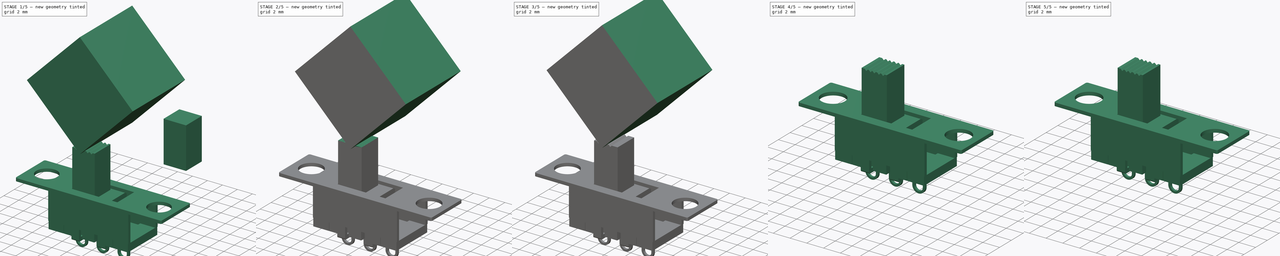
[diagram: build sequence overview — one tinted view per stage of 5, left to right]
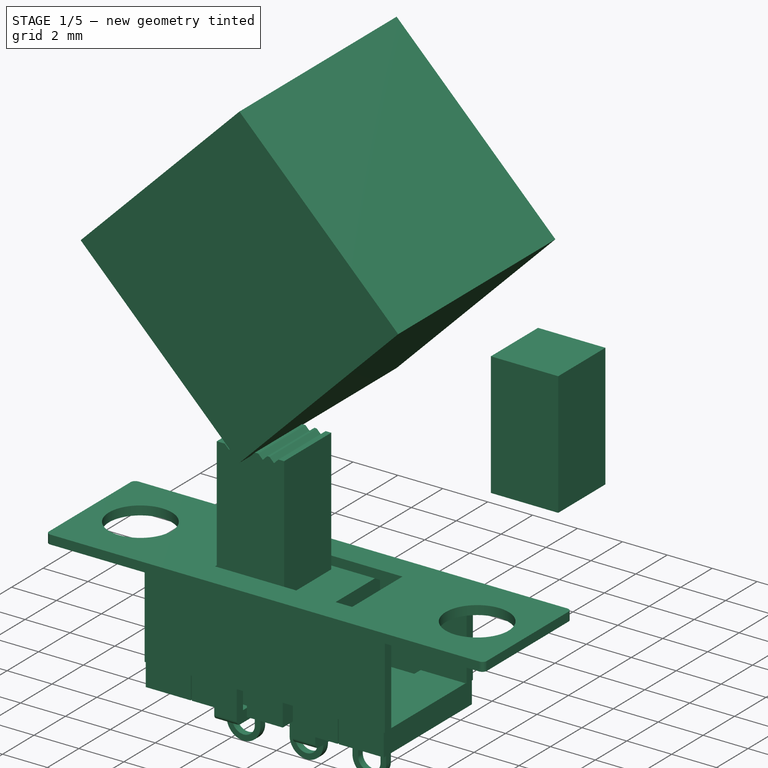
[diagram: stage 1 of 5 — iso view after this stage's code; geometry added in this stage tinted green]
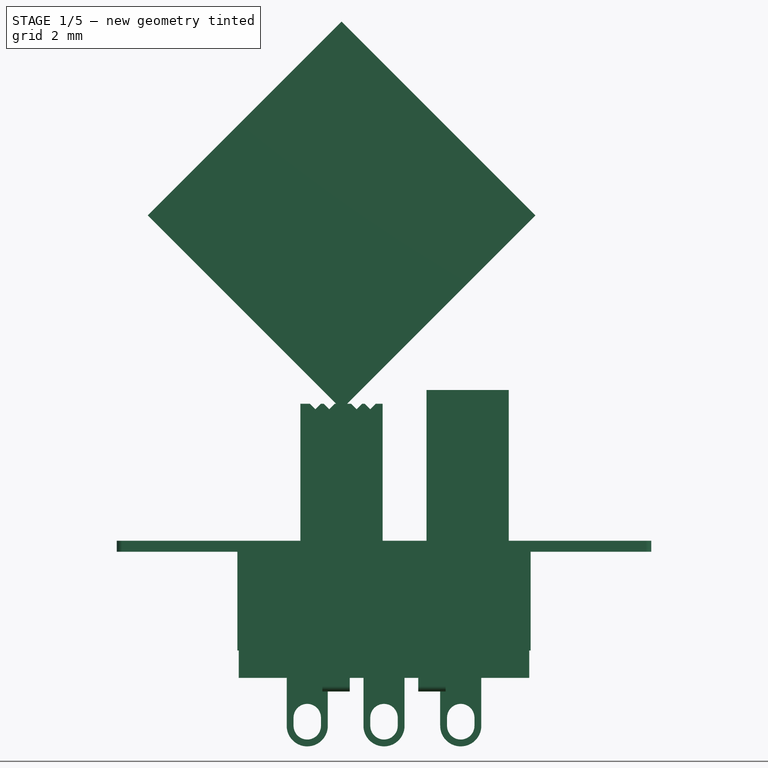
[diagram: stage 1 of 5 — front view after this stage's code; geometry added in this stage tinted green]
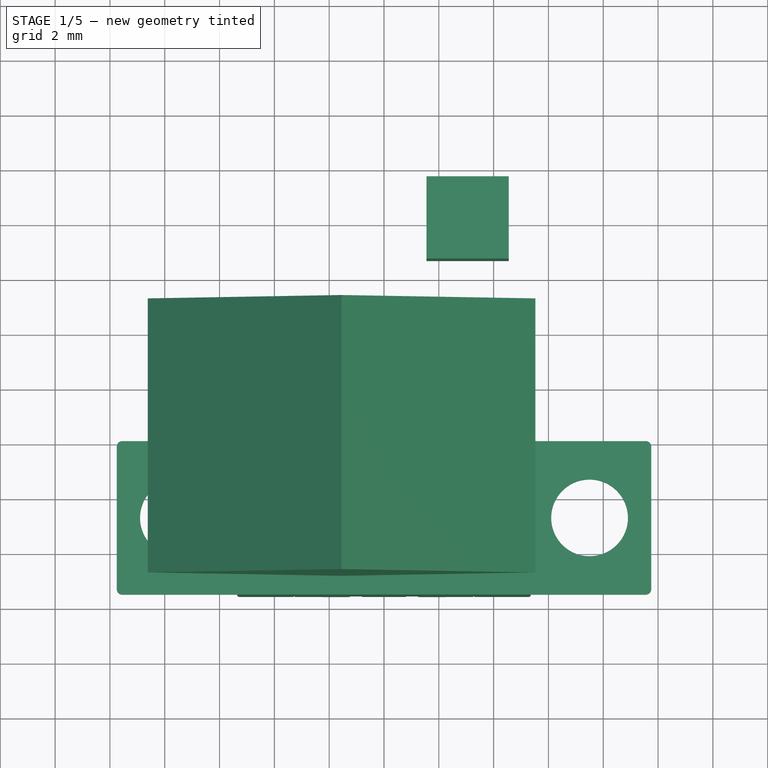
[diagram: stage 1 of 5 — top view after this stage's code; geometry added in this stage tinted green]
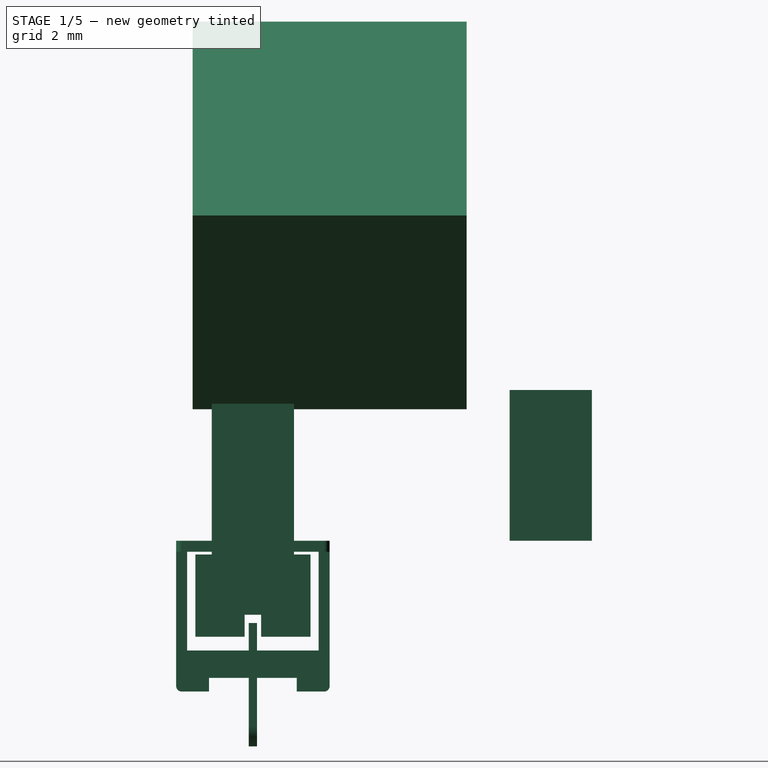
[diagram: stage 1 of 5 — right view after this stage's code; geometry added in this stage tinted green]
FCSTD DOCUMENT  (FreeCAD 0.16R6712 (Git))
Label: Sliding_switch
License: CreativeCommons Attribution-ShareAlike
LicenseURL: http://creativecommons.org/licenses/by-sa/4.0/
objects: Part::FeaturePython×7, Sketcher::SketchObject×6, Part::Cut×6, Part::Feature×6, PartDesign::Pocket×4, Part::MultiCommon×4, Part::Box×4, PartDesign::Pad×2, Part::Fillet×1, Part::MultiFuse×1, Part::Compound×1
note: 48 computed .brp shape members not serialized (recipe doc carries the construction recipe); baked Part::Feature solids carry a one-line shape summary decoded from their .brp

FEATURE [Part::Box] Box002  label="Cube002"
  Height = 5.5
  Length = 3
  Placement = pos=(1.55,6.56664,0) rot=(0,0,1;0rad)
  Width = 3
FEATURE [Part::Box] Box003  label="Cube003"
  Height = 10
  Length = 10
  Placement = pos=(-1.55,-5,4.8) rot=(0,-1,0;0.785398rad)
  Width = 10
FEATURE [Sketcher::SketchObject] Sketch005
  Placement = pos=(0,-2.65,0) rot=(-1,0,0;4.71239rad)
  sketch-geometry (9):
    g0: LineSegment StartX=-0.75 StartY=-3 StartZ=0 EndX=0.75 EndY=-3 EndZ=0
    g1: LineSegment StartX=0.75 StartY=-3 StartZ=0 EndX=0.75 EndY=-6.75 EndZ=0
    g2: LineSegment StartX=-0.75 StartY=-6.75 StartZ=0 EndX=-0.75 EndY=-3 EndZ=0
    g3: ArcOfCircle CenterX=0 CenterY=-6.75 CenterZ=0 NormalX=0 NormalY=0 NormalZ=1 Radius=0.75 StartAngle=4.71239 EndAngle=6.28319
    g4: ArcOfCircle CenterX=0 CenterY=-6.75 CenterZ=0 NormalX=0 NormalY=0 NormalZ=1 Radius=0.75 StartAngle=3.14159 EndAngle=4.71239
    g5: ArcOfCircle CenterX=0 CenterY=-6.75 CenterZ=0 NormalX=0 NormalY=0 NormalZ=1 Radius=0.5 StartAngle=3.14159 EndAngle=6.28319
    g6: ArcOfCircle CenterX=0 CenterY=-6.45 CenterZ=0 NormalX=0 NormalY=0 NormalZ=1 Radius=0.5 StartAngle=0 EndAngle=3.14159
    g7: LineSegment StartX=0.5 StartY=-6.75 StartZ=0 EndX=0.5 EndY=-6.45 EndZ=0
    g8: LineSegment StartX=-0.5 StartY=-6.75 StartZ=0 EndX=-0.5 EndY=-6.45 EndZ=0
  constraints (24):
    c: Coincident(g0,g1)
    c: Coincident(g2,g0)
    c: Horizontal(g0)
    c: Vertical(g1)
    c: Vertical(g2)
    c: Symmetric(g0,g0,g-2)
    c: DistanceX(g0,g0) = 1.5
    c: Tangent(g1,g3) = 1.5708
    c: Tangent(g2,g4) = 1.5708
    c: PointOnObject(g4,g-2)
    c: Coincident(g4,g3)
    c: Equal(g4,g3)
    c: PointOnObject(g3,g-2)
    c: DistanceY(g3,g0) = 4.5
    c: DistanceY(g0,g-1) = 3
    c: Tangent(g5,g8) = 1.5708
    c: Tangent(g5,g7) = -1.5708
    c: Tangent(g7,g6) = -1.5708
    c: Tangent(g8,g6) = 1.5708
    c: Vertical(g7)
    c: Equal(g5,g6)
    c: Coincident(g5,g3)
    c: DistanceY(g5,g6) = 0.3
    c: DistanceX(g6,g6) = 1
FEATURE [PartDesign::Pad] Pad001  label="PIN_2"
  Length = 0.3
  Length2 = 100
  Placement = pos=(0,-2.65,0) rot=(-1,0,0;4.71239rad)
  Sketch = -> Sketch005
  Type = 0
FEATURE [Part::FeaturePython] Clone005  label="PIN_1"  # Draft clone (typed FeaturePython)
  Objects = -> [Pad001]
  Placement = pos=(2.8,-2.65,0) rot=(-1,0,0;4.71239rad)
  Scale = (1,1,1)
FEATURE [Part::FeaturePython] Clone006  label="PIN_3"  # Draft clone (typed FeaturePython)
  Objects = -> [Pad001]
  Placement = pos=(-2.8,-2.65,0) rot=(-1,0,0;4.71239rad)
  Scale = (1,1,1)
FEATURE [Part::Feature] Fillet001  label="Plegado001"
  shape: bbox 19.5 x 5.6 x 5.5 mm, 60 faces (baked)
FEATURE [Part::Feature] Common002001  label="Baquelita001"
  Placement = pos=(-5.3,-5.6,-5) rot=(0,0,1;0rad)
  shape: bbox 10.6 x 5.6 x 1 mm, 34 faces (baked)
FEATURE [Part::Feature] Cut005001  label="Mando001"
  shape: bbox 6.5 x 4.2 x 8.5 mm, 30 faces (baked)
FEATURE [Part::Feature] Clone005001  label="PIN_004"
  Placement = pos=(2.8,-2.65,0) rot=(1,0,0;1.5708rad)
  shape: bbox 1.5 x 0.3 x 4.5 mm, 10 faces (baked)
FEATURE [Part::Feature] Pad001001  label="PIN_005"
  Placement = pos=(0,-2.65,0) rot=(1,0,0;1.5708rad)
  shape: bbox 1.5 x 0.3 x 4.5 mm, 10 faces (baked)
FEATURE [Part::Feature] Clone006001  label="PIN_006"
  Placement = pos=(-2.8,-2.65,0) rot=(1,0,0;1.5708rad)
  shape: bbox 1.5 x 0.3 x 4.5 mm, 10 faces (baked)
FEATURE [Part::Compound] Compound
  Links = -> [Fillet001,Common002001,Cut005001,Clone005001,Pad001001,Clone006001]
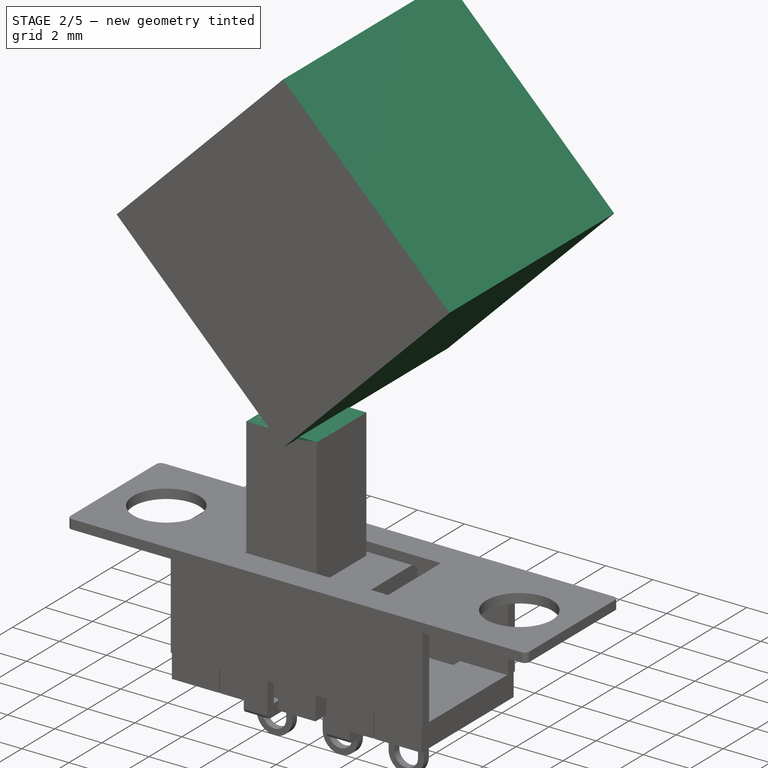
[diagram: stage 2 of 5 — iso view after this stage's code; geometry added in this stage tinted green]
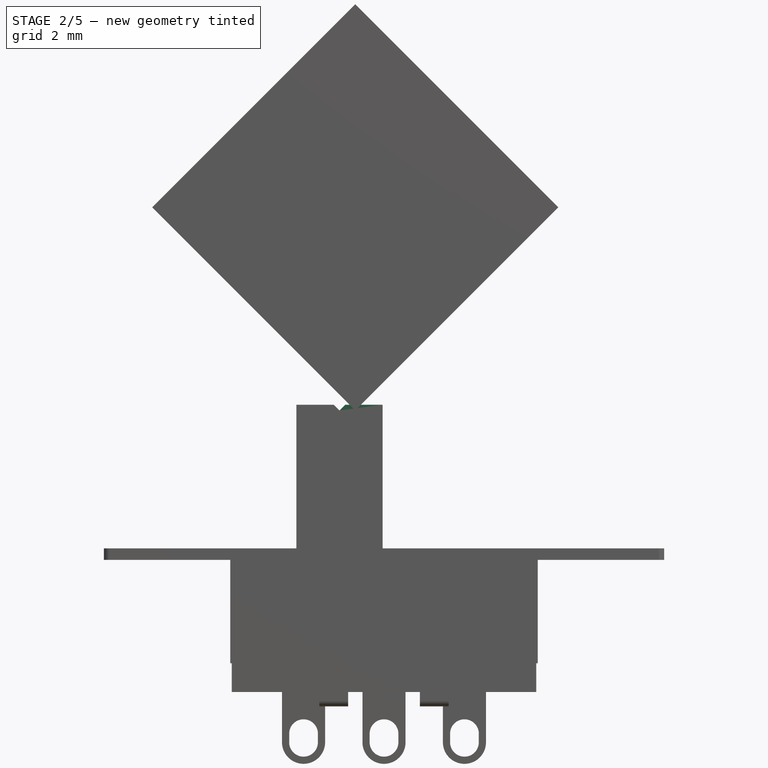
[diagram: stage 2 of 5 — front view after this stage's code; geometry added in this stage tinted green]
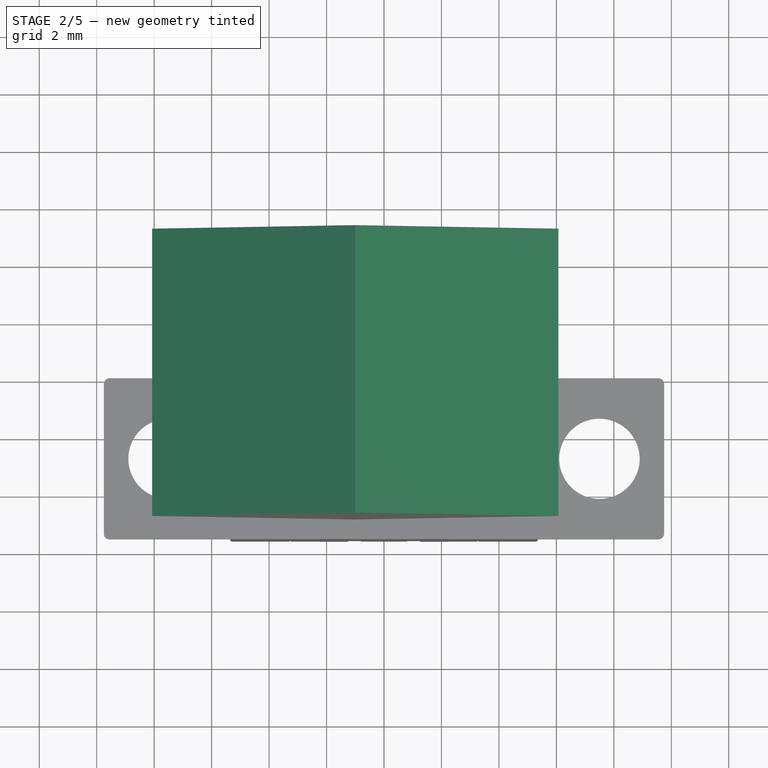
[diagram: stage 2 of 5 — top view after this stage's code; geometry added in this stage tinted green]
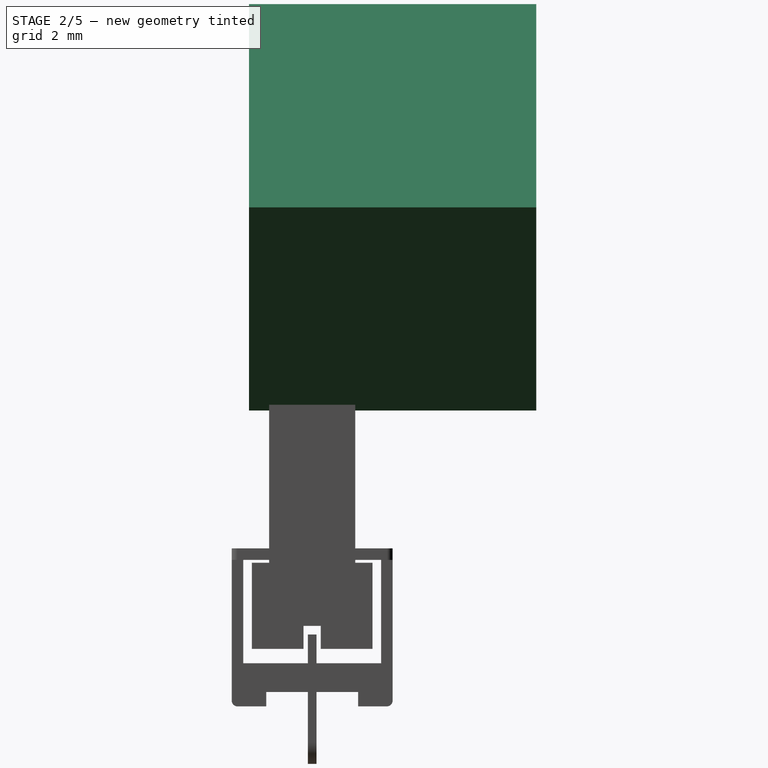
[diagram: stage 2 of 5 — right view after this stage's code; geometry added in this stage tinted green]
FEATURE [Part::Box] Box001  label="Cube001"
  Height = 3
  Length = 6.5
  Placement = pos=(-0.2,5.96664,-3) rot=(0,0,1;0rad)
  Width = 4.2
FEATURE [Part::MultiFuse] Fusion
  Placement = pos=(-4.6,-10.8666,-0.5) rot=(0,0,1;0rad)
  Shapes = -> [Box001,Box002]
FEATURE [Sketcher::SketchObject] Sketch004
  ExternalGeometry = -> [Fusion]
  Placement = pos=(-4.8,-10.8666,-0.5) rot=(0.57735,-0.57735,-0.57735;2.0944rad)
  Support = -> Fusion [Face1]
  sketch-geometry (4):
    g0: LineSegment StartX=-8.36664 StartY=-3 StartZ=0 EndX=-7.76664 EndY=-3 EndZ=0
    g1: LineSegment StartX=-7.76664 StartY=-3 StartZ=0 EndX=-7.76664 EndY=-2.2 EndZ=0
    g2: LineSegment StartX=-7.76664 StartY=-2.2 StartZ=0 EndX=-8.36664 EndY=-2.2 EndZ=0
    g3: LineSegment StartX=-8.36664 StartY=-2.2 StartZ=0 EndX=-8.36664 EndY=-3 EndZ=0
  constraints (12):
    c: Coincident(g0,g1)
    c: Coincident(g1,g2)
    c: Coincident(g2,g3)
    c: Coincident(g3,g0)
    c: Horizontal(g0)
    c: Horizontal(g2)
    c: Vertical(g1)
    c: Vertical(g3)
    c: PointOnObject(g0,g-3)
    c: DistanceY(g1,g1) = 0.8
    c: DistanceX(g2,g2) = 0.6
    c: DistanceX(g-3,g2) = 1.8
FEATURE [PartDesign::Pocket] Pocket003
  Length = 5
  Placement = pos=(-4.6,-10.8666,-0.5) rot=(0,0,1;0rad)
  Sketch = -> Sketch004
  Type = 1
FEATURE [Part::MultiCommon] Common003
  Shapes = -> [Fusion,Pocket003]
FEATURE [Part::FeaturePython] Clone  label="Clone of Cube003"  # Draft clone (typed FeaturePython)
  Objects = -> [Box003]
  Placement = pos=(-1,-5,4.8) rot=(0,-1,0;0.785398rad)
  Scale = (1,1,1)
FEATURE [Part::Cut] Cut
  Base = -> Common003
  Tool = -> Box003
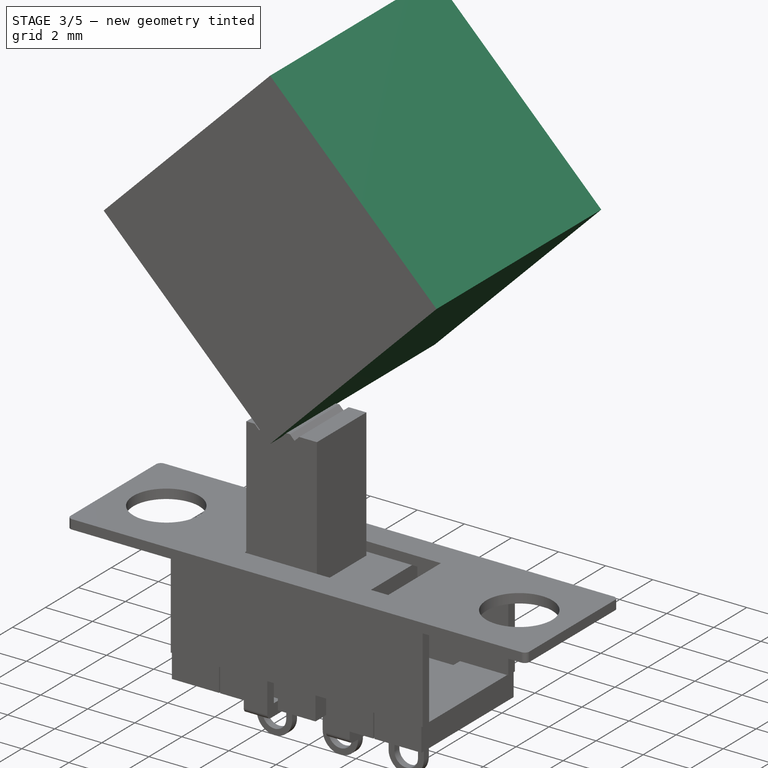
[diagram: stage 3 of 5 — iso view after this stage's code; geometry added in this stage tinted green]
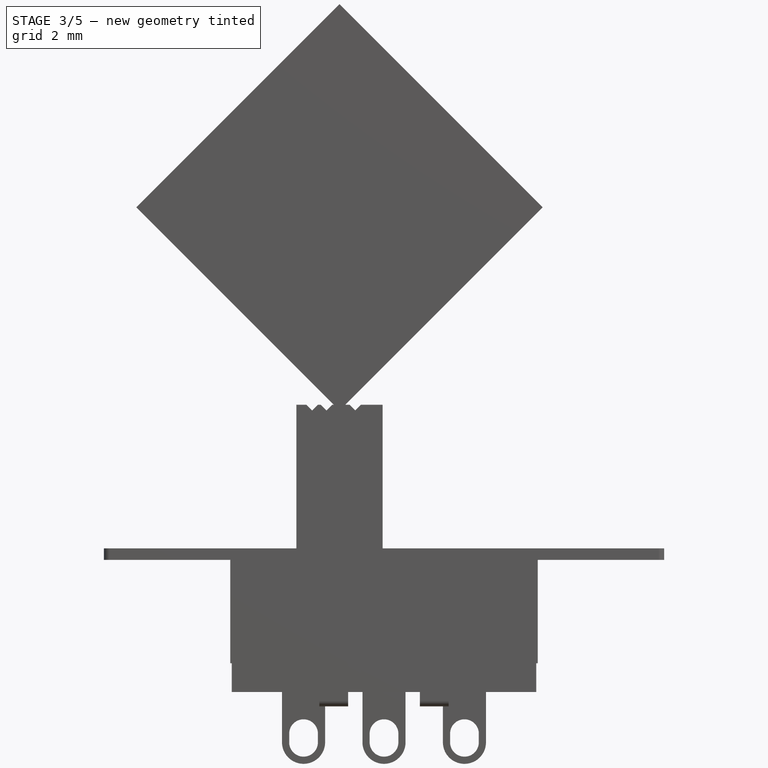
[diagram: stage 3 of 5 — front view after this stage's code; geometry added in this stage tinted green]
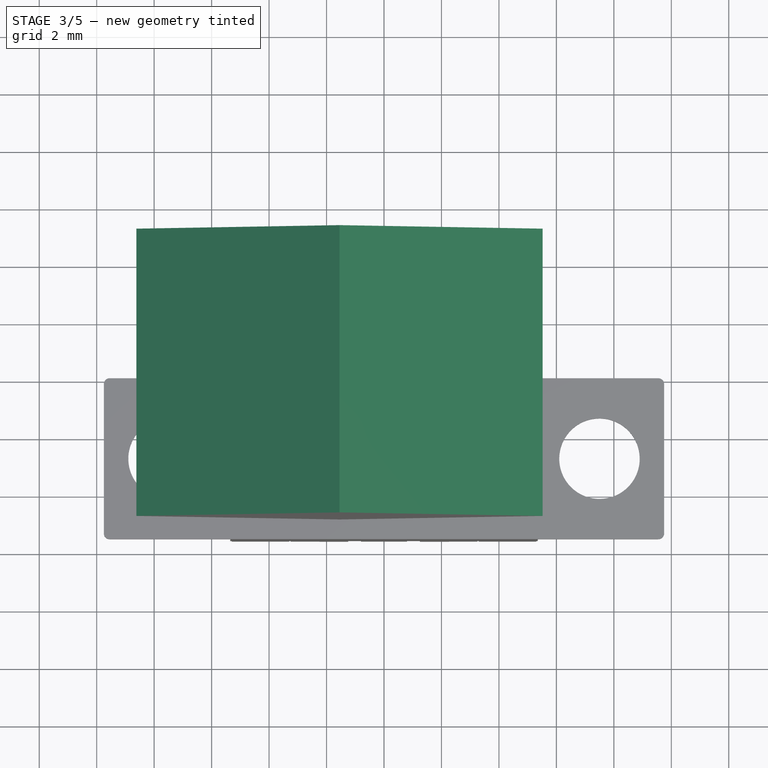
[diagram: stage 3 of 5 — top view after this stage's code; geometry added in this stage tinted green]
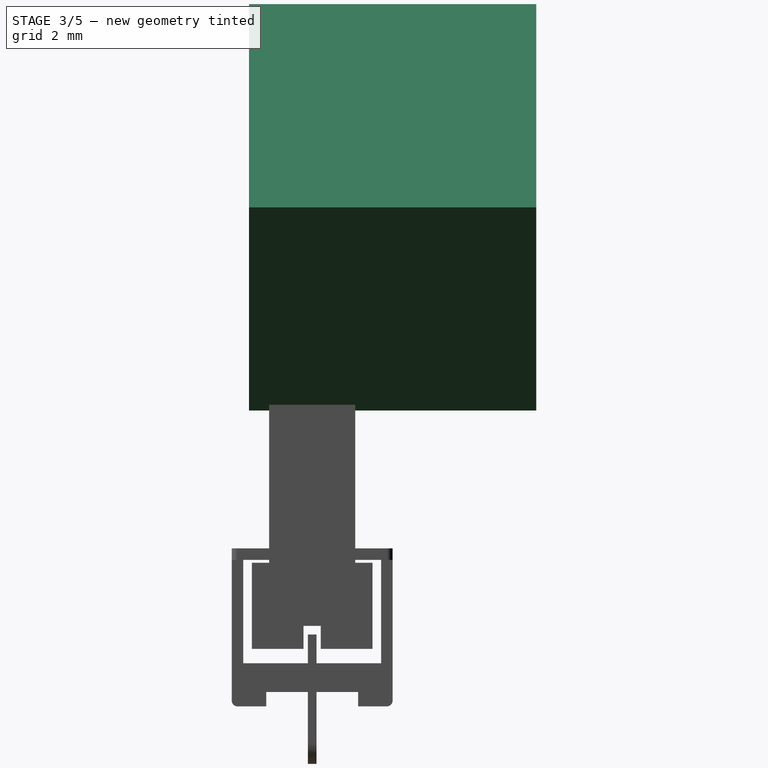
[diagram: stage 3 of 5 — right view after this stage's code; geometry added in this stage tinted green]
FEATURE [Part::FeaturePython] Clone001  label="Clone of Cube004"  # Draft clone (typed FeaturePython)
  Objects = -> [Box003]
  Placement = pos=(-2,-5,4.8) rot=(0,-1,0;0.785398rad)
  Scale = (1,1,1)
FEATURE [Part::FeaturePython] Clone002  label="Clone of Cube005"  # Draft clone (typed FeaturePython)
  Objects = -> [Box003]
  Placement = pos=(-2.5,-5,4.8) rot=(0,-1,0;0.785398rad)
  Scale = (1,1,1)
FEATURE [Part::FeaturePython] Clone003  label="Clone of Cube006"  # Draft clone (typed FeaturePython)
  Objects = -> [Box003]
  Placement = pos=(-1.55,-5,4.8) rot=(0,-1,0;0.785398rad)
  Scale = (1,1,1)
FEATURE [Part::Cut] Cut001
  Base = -> Cut
  Tool = -> Clone
FEATURE [Part::Cut] Cut002
  Base = -> Cut001
  Tool = -> Clone001
FEATURE [Part::Cut] Cut003
  Base = -> Cut002
  Tool = -> Clone002
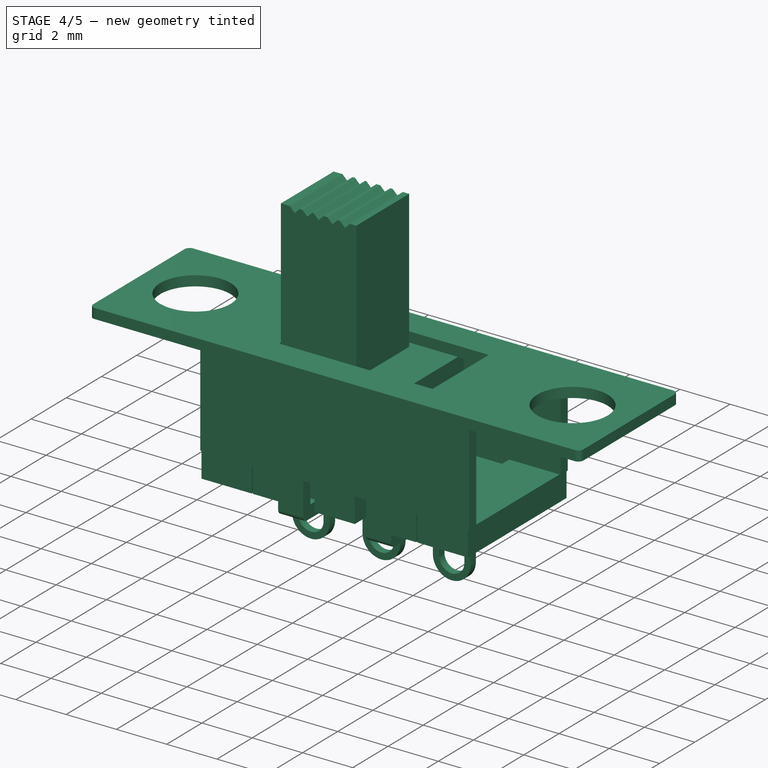
[diagram: stage 4 of 5 — iso view after this stage's code; geometry added in this stage tinted green]
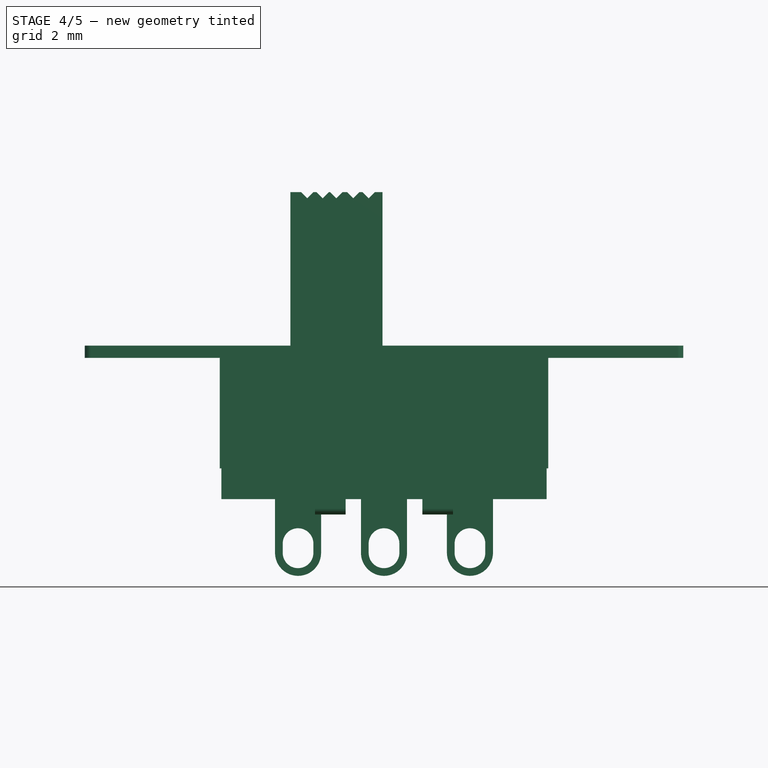
[diagram: stage 4 of 5 — front view after this stage's code; geometry added in this stage tinted green]
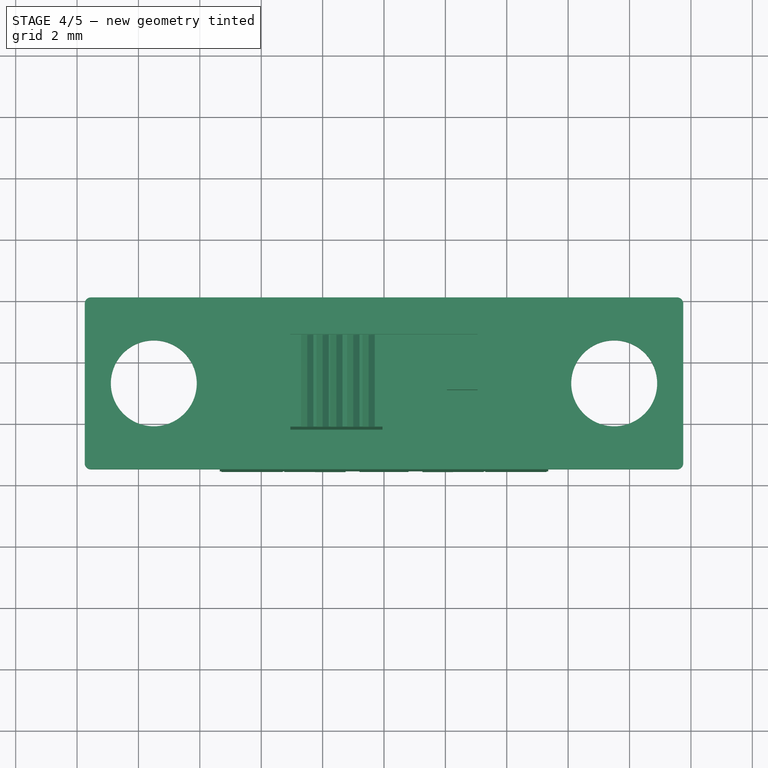
[diagram: stage 4 of 5 — top view after this stage's code; geometry added in this stage tinted green]
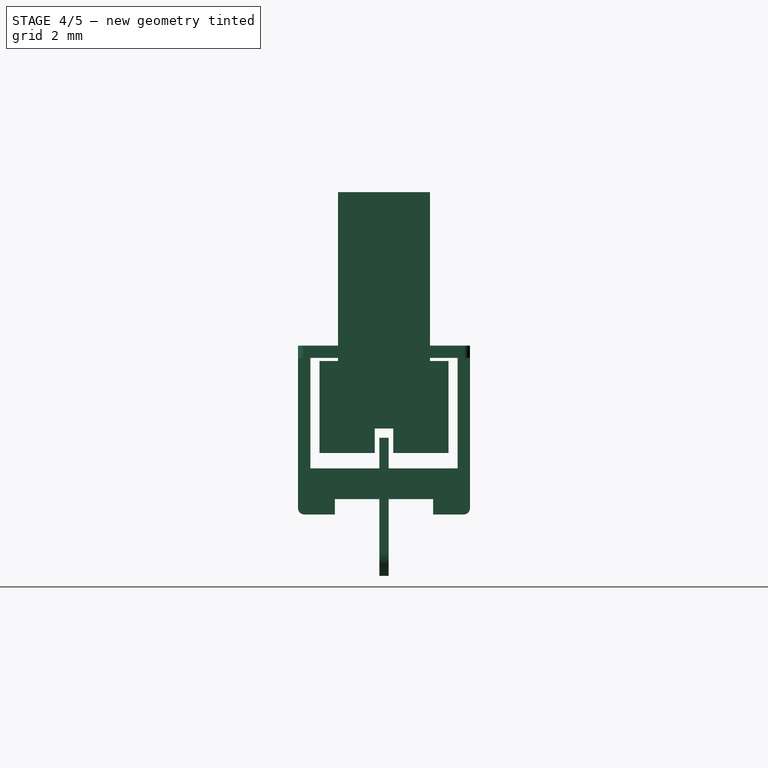
[diagram: stage 4 of 5 — right view after this stage's code; geometry added in this stage tinted green]
FEATURE [Part::Box] Box  label="Cube"
  Height = 1
  Length = 10.6
  Width = 5.6
FEATURE [Sketcher::SketchObject] Sketch003
  ExternalGeometry = -> [Box]
  Placement = pos=(0,0,1) rot=(0,0,1;0rad)
  Support = -> Box [Face6]
  sketch-geometry (28):
    g0: LineSegment StartX=2 StartY=5.6 StartZ=0 EndX=4.5 EndY=5.6 EndZ=0
    g1: LineSegment StartX=4.5 StartY=5.6 StartZ=0 EndX=4.5 EndY=4.8 EndZ=0
    g2: LineSegment StartX=4.5 StartY=4.8 StartZ=0 EndX=2 EndY=4.8 EndZ=0
    g3: LineSegment StartX=2 StartY=4.8 StartZ=0 EndX=2 EndY=5.6 EndZ=0
    g4: LineSegment StartX=6.1 StartY=5.6 StartZ=0 EndX=8.6 EndY=5.6 EndZ=0
    g5: LineSegment StartX=8.6 StartY=5.6 StartZ=0 EndX=8.6 EndY=4.8 EndZ=0
    g6: LineSegment StartX=8.6 StartY=4.8 StartZ=0 EndX=6.1 EndY=4.8 EndZ=0
    g7: LineSegment StartX=6.1 StartY=4.8 StartZ=0 EndX=6.1 EndY=5.6 EndZ=0
    g8: LineSegment StartX=2 StartY=0 StartZ=0 EndX=4.5 EndY=0 EndZ=0
    g9: LineSegment StartX=4.5 StartY=0 StartZ=0 EndX=4.5 EndY=0.8 EndZ=0
    g10: LineSegment StartX=4.5 StartY=0.8 StartZ=0 EndX=2 EndY=0.8 EndZ=0
    g11: LineSegment StartX=2 StartY=0.8 StartZ=0 EndX=2 EndY=0 EndZ=0
    g12: LineSegment StartX=6.1 StartY=0 StartZ=0 EndX=8.6 EndY=0 EndZ=0
    g13: LineSegment StartX=8.6 StartY=0 StartZ=0 EndX=8.6 EndY=0.8 EndZ=0
    g14: LineSegment StartX=8.6 StartY=0.8 StartZ=0 EndX=6.1 EndY=0.8 EndZ=0
    g15: LineSegment StartX=6.1 StartY=0.8 StartZ=0 EndX=6.1 EndY=0 EndZ=0
    g16: LineSegment StartX=1.75 StartY=2.95 StartZ=0 EndX=3.25 EndY=2.95 EndZ=0
    g17: LineSegment StartX=3.25 StartY=2.95 StartZ=0 EndX=3.25 EndY=2.65 EndZ=0
    g18: LineSegment StartX=3.25 StartY=2.65 StartZ=0 EndX=1.75 EndY=2.65 EndZ=0
    g19: LineSegment StartX=1.75 StartY=2.65 StartZ=0 EndX=1.75 EndY=2.95 EndZ=0
    g20: LineSegment StartX=4.55 StartY=2.95 StartZ=0 EndX=6.05 EndY=2.95 EndZ=0
    g21: LineSegment StartX=6.05 StartY=2.95 StartZ=0 EndX=6.05 EndY=2.65 EndZ=0
    g22: LineSegment StartX=6.05 StartY=2.65 StartZ=0 EndX=4.55 EndY=2.65 EndZ=0
    g23: LineSegment StartX=4.55 StartY=2.65 StartZ=0 EndX=4.55 EndY=2.95 EndZ=0
    g24: LineSegment StartX=7.35 StartY=2.95 StartZ=0 EndX=8.85 EndY=2.95 EndZ=0
    g25: LineSegment StartX=8.85 StartY=2.95 StartZ=0 EndX=8.85 EndY=2.65 EndZ=0
    g26: LineSegment StartX=8.85 StartY=2.65 StartZ=0 EndX=7.35 EndY=2.65 EndZ=0
    g27: LineSegment StartX=7.35 StartY=2.65 StartZ=0 EndX=7.35 EndY=2.95 EndZ=0
  constraints (84):
    c: Coincident(g0,g1)
    c: Coincident(g1,g2)
    c: Coincident(g2,g3)
    c: Coincident(g3,g0)
    c: Horizontal(g0)
    c: Horizontal(g2)
    c: Vertical(g1)
    c: Vertical(g3)
    c: PointOnObject(g0,g-3)
    c: Coincident(g4,g5)
    c: Coincident(g5,g6)
    c: Coincident(g6,g7)
    c: Coincident(g7,g4)
    c: Horizontal(g4)
    c: Horizontal(g6)
    c: Vertical(g5)
    c: Vertical(g7)
    c: PointOnObject(g4,g-3)
    c: Coincident(g8,g9)
    c: Coincident(g9,g10)
    c: Coincident(g10,g11)
    c: Coincident(g11,g8)
    c: Horizontal(g8)
    c: Horizontal(g10)
    c: Vertical(g9)
    c: Vertical(g11)
    c: PointOnObject(g8,g-1)
    c: Coincident(g12,g13)
    c: Coincident(g13,g14)
    c: Coincident(g14,g15)
    c: Coincident(g15,g12)
    c: Horizontal(g12)
    c: Horizontal(g14)
    c: Vertical(g13)
    c: Vertical(g15)
    c: PointOnObject(g12,g-1)
    c: Equal(g3,g7)
    c: Equal(g7,g15)
    c: Equal(g15,g11)
    c: Equal(g2,g6)
    c: Equal(g6,g14)
    c: Equal(g14,g10)
    c: DistanceX(g2,g2) = 2.5
    c: DistanceY(g5,g5) = 0.8
    c: DistanceX(g-3,g0) = 2
    c: DistanceX(g-1,g8) = 2
    c: DistanceX(g4,g-3) = 2
    c: DistanceX(g13,g-3) = 2
    c: Coincident(g16,g17)
    c: Coincident(g17,g18)
    c: Coincident(g18,g19)
    c: Coincident(g19,g16)
    c: Horizontal(g16)
    c: Horizontal(g18)
    c: Vertical(g17)
    c: Vertical(g19)
    c: Coincident(g20,g21)
    c: Coincident(g21,g22)
    c: Coincident(g22,g23)
    c: Coincident(g23,g20)
    c: Horizontal(g20)
    c: Horizontal(g22)
    c: Vertical(g21)
    c: Vertical(g23)
    c: Coincident(g24,g25)
    c: Coincident(g25,g26)
    c: Coincident(g26,g27)
    c: Coincident(g27,g24)
    c: Horizontal(g24)
    c: Horizontal(g26)
    c: Vertical(g25)
    c: Vertical(g27)
    c: Equal(g16,g20)
    c: Equal(g20,g24)
    c: Equal(g17,g21)
    c: Equal(g21,g25)
    c: DistanceY(g25,g25) = 0.3
    c: DistanceX(g24,g24) = 1.5
    c: DistanceY(g-1,g25) = 2.65
    c: DistanceY(g-1,g21) = 2.65
    c: DistanceY(g-1,g17) = 2.65
    c: DistanceX(g16,g20) = 1.3
    c: DistanceX(g20,g24) = 1.3
    c: DistanceX(g-3,g16) = 1.75
FEATURE [PartDesign::Pocket] Pocket002
  Length = 5
  Sketch = -> Sketch003
  Type = 0
FEATURE [Part::MultiCommon] Common002  label="Baquelita"
  Placement = pos=(-5.3,-5.6,-5) rot=(0,0,1;0rad)
  Shapes = -> [Box,Pocket002]
FEATURE [Part::FeaturePython] Clone004  label="Clone of Cube007"  # Draft clone (typed FeaturePython)
  Objects = -> [Box003]
  Placement = pos=(-0.5,-6,4.8) rot=(0,-1,0;0.785398rad)
  Scale = (1,1,1)
FEATURE [Part::Cut] Cut004
  Base = -> Cut003
  Tool = -> Clone003
FEATURE [Part::Cut] Cut005  label="Mando"
  Base = -> Cut004
  Tool = -> Clone004
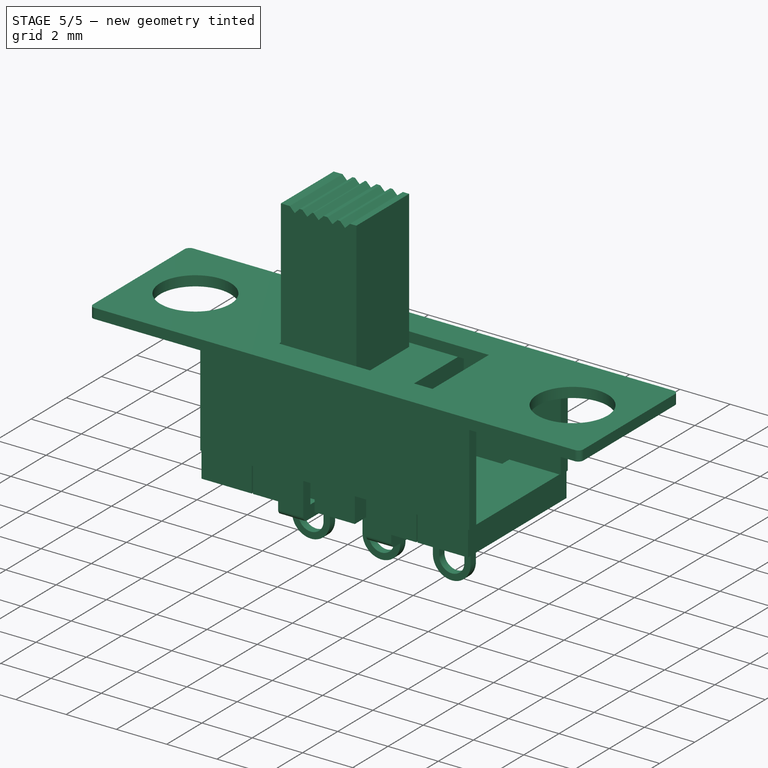
[diagram: stage 5 of 5 — iso view after this stage's code; geometry added in this stage tinted green]
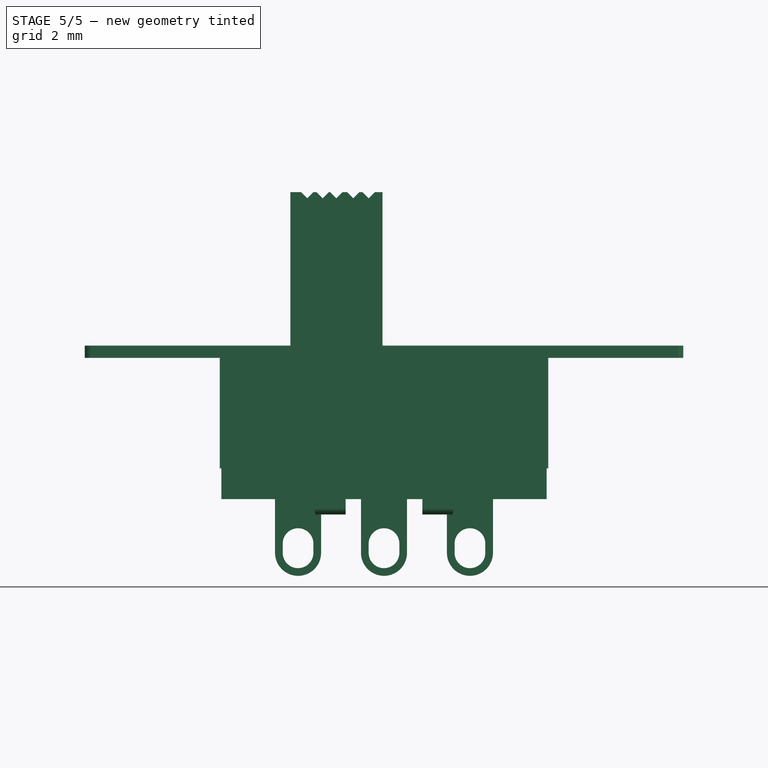
[diagram: stage 5 of 5 — front view after this stage's code; geometry added in this stage tinted green]
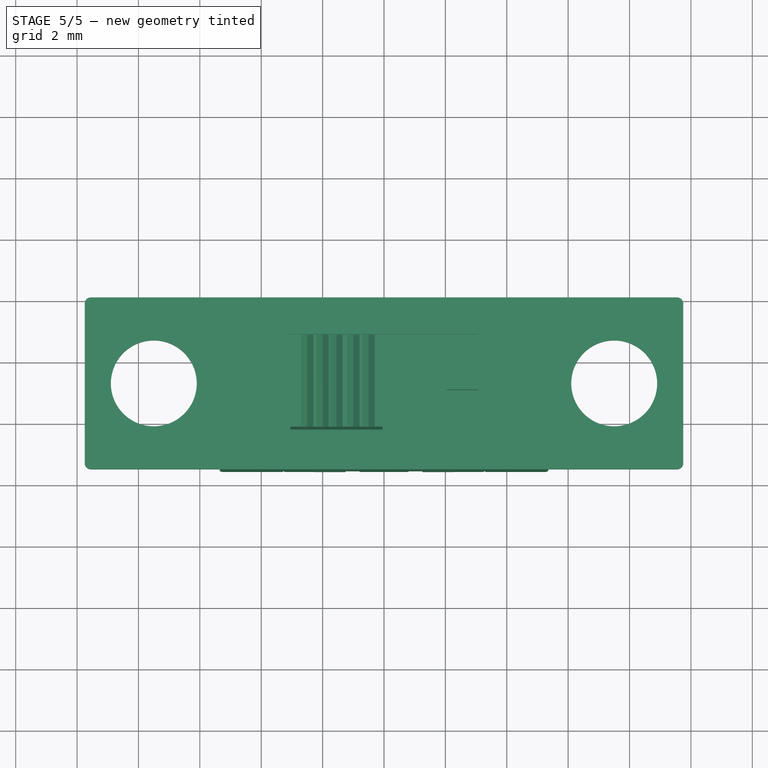
[diagram: stage 5 of 5 — top view after this stage's code; geometry added in this stage tinted green]
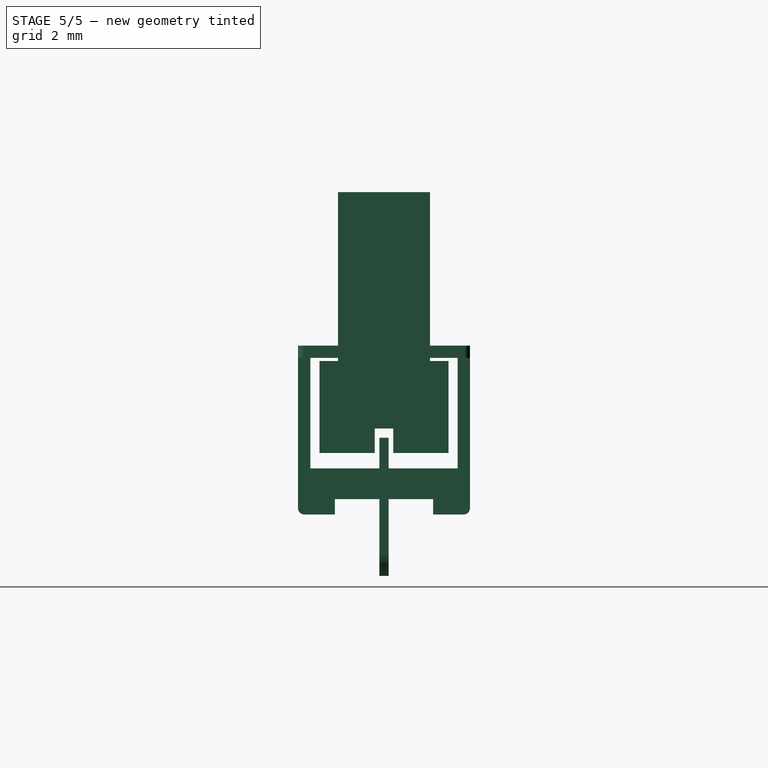
[diagram: stage 5 of 5 — right view after this stage's code; geometry added in this stage tinted green]
FEATURE [Sketcher::SketchObject] Sketch
  Placement = pos=(0,0,0) rot=(1,0,0;1.5708rad)
  sketch-geometry (20):
    g0: LineSegment StartX=-9.75 StartY=0 StartZ=0 EndX=9.75 EndY=0 EndZ=0
    g1: LineSegment StartX=9.75 StartY=0 StartZ=0 EndX=9.75 EndY=-0.4 EndZ=0
    g2: LineSegment StartX=9.75 StartY=-0.4 StartZ=0 EndX=5.35 EndY=-0.4 EndZ=0
    g3: LineSegment StartX=5.35 StartY=-0.4 StartZ=0 EndX=5.35 EndY=-4 EndZ=0
    g4: LineSegment StartX=5.35 StartY=-4 StartZ=0 EndX=3.25 EndY=-4 EndZ=0
    g5: LineSegment StartX=3.25 StartY=-4 StartZ=0 EndX=3.25 EndY=-5 EndZ=0
    g6: LineSegment StartX=3.25 StartY=-5 StartZ=0 EndX=2.25 EndY=-5 EndZ=0
    g7: LineSegment StartX=2.25 StartY=-5 StartZ=0 EndX=2.25 EndY=-5.5 EndZ=0
    g8: LineSegment StartX=2.25 StartY=-5.5 StartZ=0 EndX=1.25 EndY=-5.5 EndZ=0
    g9: LineSegment StartX=1.25 StartY=-5.5 StartZ=0 EndX=1.25 EndY=-4 EndZ=0
    g10: LineSegment StartX=1.25 StartY=-4 StartZ=0 EndX=-1.25 EndY=-4 EndZ=0
    g11: LineSegment StartX=-1.25 StartY=-4 StartZ=0 EndX=-1.25 EndY=-5.5 EndZ=0
    g12: LineSegment StartX=-1.25 StartY=-5.5 StartZ=0 EndX=-2.25 EndY=-5.5 EndZ=0
    g13: LineSegment StartX=-2.25 StartY=-5.5 StartZ=0 EndX=-2.25 EndY=-5 EndZ=0
    g14: LineSegment StartX=-2.25 StartY=-5 StartZ=0 EndX=-3.25 EndY=-5 EndZ=0
    g15: LineSegment StartX=-3.25 StartY=-5 StartZ=0 EndX=-3.25 EndY=-4 EndZ=0
    g16: LineSegment StartX=-3.25 StartY=-4 StartZ=0 EndX=-5.35 EndY=-4 EndZ=0
    g17: LineSegment StartX=-5.35 StartY=-4 StartZ=0 EndX=-5.35 EndY=-0.4 EndZ=0
    g18: LineSegment StartX=-5.35 StartY=-0.4 StartZ=0 EndX=-9.75 EndY=-0.4 EndZ=0
    g19: LineSegment StartX=-9.75 StartY=-0.4 StartZ=0 EndX=-9.75 EndY=0 EndZ=0
  constraints (59):
    c: Coincident(g0,g1)
    c: Vertical(g1)
    c: Coincident(g1,g2)
    c: Horizontal(g2)
    c: Coincident(g2,g3)
    c: Vertical(g3)
    c: Coincident(g3,g4)
    c: Horizontal(g4)
    c: Coincident(g4,g5)
    c: Vertical(g5)
    c: Coincident(g5,g6)
    c: Horizontal(g6)
    c: Coincident(g6,g7)
    c: Vertical(g7)
    c: Coincident(g7,g8)
    c: Horizontal(g8)
    c: Coincident(g8,g9)
    c: Vertical(g9)
    c: Coincident(g9,g10)
    c: Horizontal(g10)
    c: Coincident(g10,g11)
    c: Vertical(g11)
    c: Coincident(g11,g12)
    c: Horizontal(g12)
    c: Coincident(g12,g13)
    c: Vertical(g13)
    c: Coincident(g13,g14)
    c: Horizontal(g14)
    c: Coincident(g14,g15)
    c: Vertical(g15)
    c: Coincident(g15,g16)
    c: Horizontal(g16)
    c: Coincident(g16,g17)
    c: Vertical(g17)
    c: Coincident(g17,g18)
    c: Horizontal(g18)
    c: Coincident(g18,g19)
    c: Coincident(g19,g0)
    c: Vertical(g19)
    c: Symmetric(g0,g0,g-2)
    c: DistanceY(g1,g0) = 0.4
    c: DistanceX(g0,g0) = 19.5
    c: Equal(g12,g8)
    c: DistanceX(g8,g7) = 1
    c: Equal(g14,g6)
    c: DistanceX(g8,g5) = 2
    c: Symmetric(g10,g9,g-2)
    c: DistanceX(g10,g10) = 2.5
    c: Equal(g16,g4)
    c: DistanceY(g3,g-1) = 4
    c: Equal(g15,g5)
    c: Equal(g11,g9)
    c: DistanceY(g7,g0) = 5.5
    c: Equal(g19,g1)
    c: PointOnObject(g0,g-1)
    c: Equal(g17,g3)
    c: DistanceY(g5,g-1) = 5
    c: DistanceY(g9,g-1) = 4
    c: DistanceX(g17,g2) = 10.7
FEATURE [PartDesign::Pad] Pad
  Length = 5.6
  Length2 = 100
  Placement = pos=(0,0,0) rot=(1,0,0;1.5708rad)
  Sketch = -> Sketch
  Type = 0
FEATURE [Sketcher::SketchObject] Sketch001
  ExternalGeometry = -> [Pad]
  Placement = pos=(5.35,0,0) rot=(0.707107,0,0.707107;3.14159rad)
  Support = -> Pad [Face4]
  sketch-geometry (4):
    g0: LineSegment StartX=-5 StartY=5.2 StartZ=0 EndX=-0.4 EndY=5.2 EndZ=0
    g1: LineSegment StartX=-0.4 StartY=5.2 StartZ=0 EndX=-0.4 EndY=0.4 EndZ=0
    g2: LineSegment StartX=-0.4 StartY=0.4 StartZ=0 EndX=-5 EndY=0.4 EndZ=0
    g3: LineSegment StartX=-5 StartY=0.4 StartZ=0 EndX=-5 EndY=5.2 EndZ=0
  constraints (12):
    c: Coincident(g0,g1)
    c: Coincident(g1,g2)
    c: Coincident(g2,g3)
    c: Coincident(g3,g0)
    c: Horizontal(g0)
    c: Horizontal(g2)
    c: Vertical(g1)
    c: Vertical(g3)
    c: PointOnObject(g0,g-3)
    c: PointOnObject(g0,g-4)
    c: DistanceY(g0,g-4) = 0.4
    c: DistanceY(g-4,g1) = 0.4
FEATURE [PartDesign::Pocket] Pocket
  Length = 5
  Placement = pos=(0,0,0) rot=(1,0,0;1.5708rad)
  Sketch = -> Sketch001
  Type = 1
FEATURE [Part::MultiCommon] Common
  Shapes = -> [Pad,Pocket]
FEATURE [Sketcher::SketchObject] Sketch002
  Support = -> Common [Face1]
  sketch-geometry (6):
    g0: LineSegment StartX=-3.05 StartY=-1.2 StartZ=0 EndX=3.05 EndY=-1.2 EndZ=0
    g1: LineSegment StartX=3.05 StartY=-1.2 StartZ=0 EndX=3.05 EndY=-4.4 EndZ=0
    g2: LineSegment StartX=3.05 StartY=-4.4 StartZ=0 EndX=-3.05 EndY=-4.4 EndZ=0
    g3: LineSegment StartX=-3.05 StartY=-4.4 StartZ=0 EndX=-3.05 EndY=-1.2 EndZ=0
    g4: Circle CenterX=-7.5 CenterY=-2.8 CenterZ=0 NormalX=0 NormalY=0 NormalZ=1 Radius=1.4
    g5: Circle CenterX=7.5 CenterY=-2.8 CenterZ=0 NormalX=0 NormalY=0 NormalZ=1 Radius=1.4
  constraints (17):
    c: Coincident(g0,g1)
    c: Coincident(g1,g2)
    c: Coincident(g2,g3)
    c: Coincident(g3,g0)
    c: Horizontal(g0)
    c: Horizontal(g2)
    c: Vertical(g1)
    c: Vertical(g3)
    c: Symmetric(g0,g0,g-2)
    c: DistanceY(g1,g1) = 3.2
    c: DistanceX(g0,g0) = 6.1
    c: DistanceY(g0,g-1) = 1.2
    c: Equal(g4,g5)
    c: Radius(g5) = 1.4
    c: Symmetric(g4,g5,g-2)
    c: DistanceX(g-1,g5) = 7.5
    c: DistanceY(g5,g-1) = 2.8
FEATURE [PartDesign::Pocket] Pocket001
  Length = 5
  Sketch = -> Sketch002
  Type = 1
FEATURE [Part::MultiCommon] Common001
  Shapes = -> [Common,Pocket001]
FEATURE [Part::Fillet] Fillet  label="Plegado"
  Base = -> Common001
  Edges = 8 edges r=0.2: [Edge12,Edge13,Edge14,Edge27,Edge28,Edge32,Edge45,Edge46]
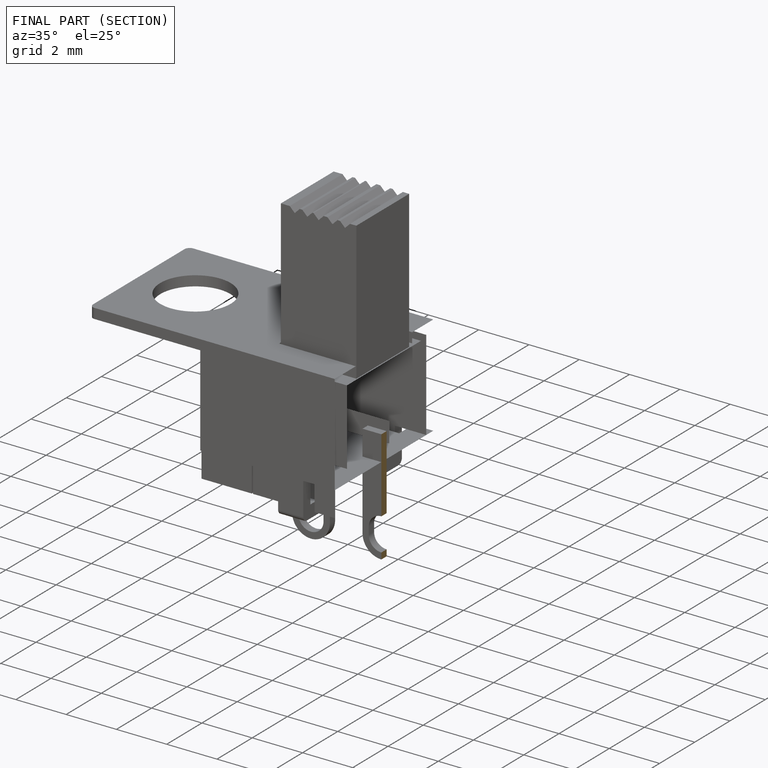
[diagram: finished part — half-section view (interior)]
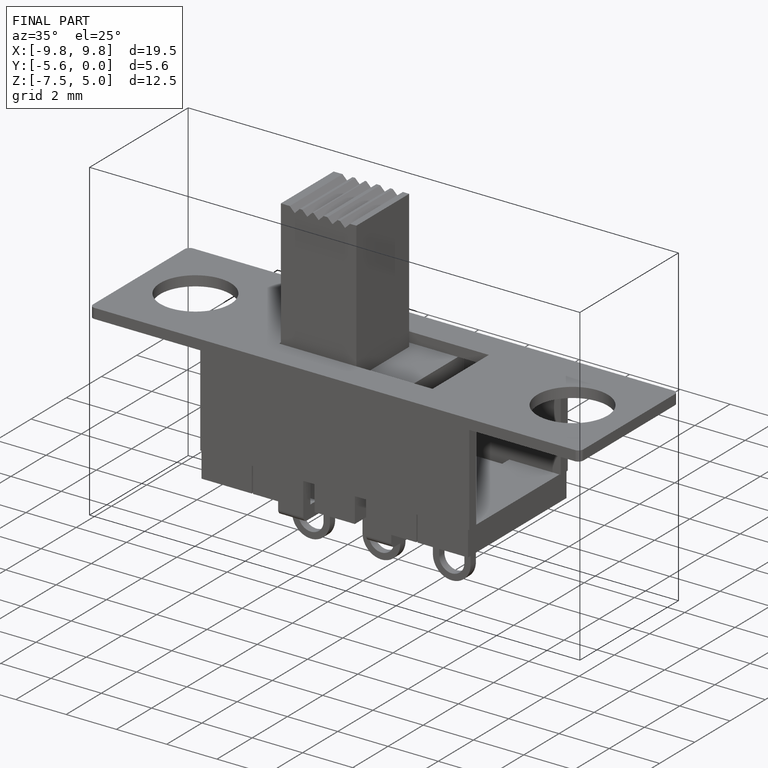
[diagram: finished part — iso view with bounding-box wireframe]
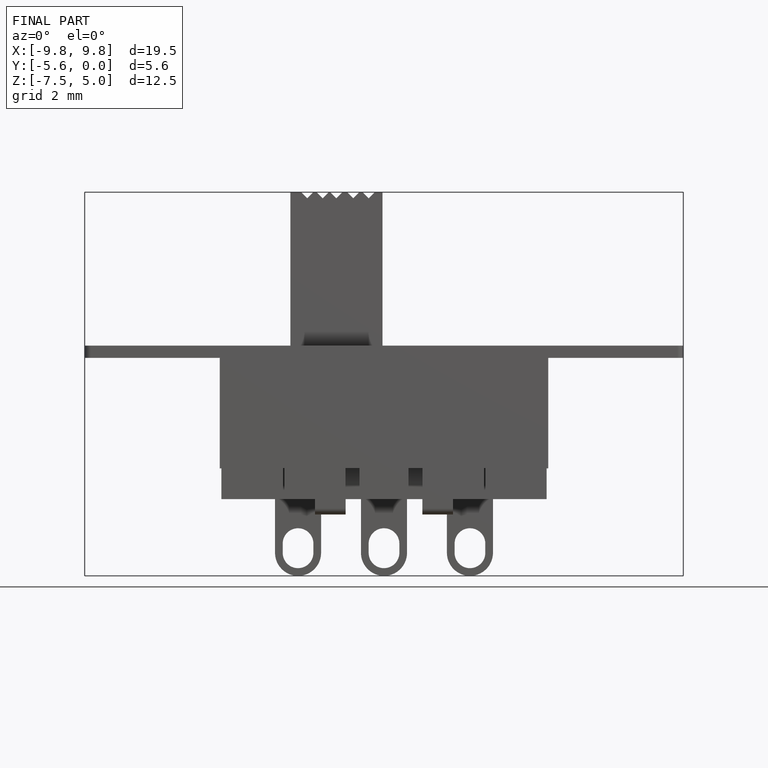
[diagram: finished part — front view with bounding-box wireframe]
